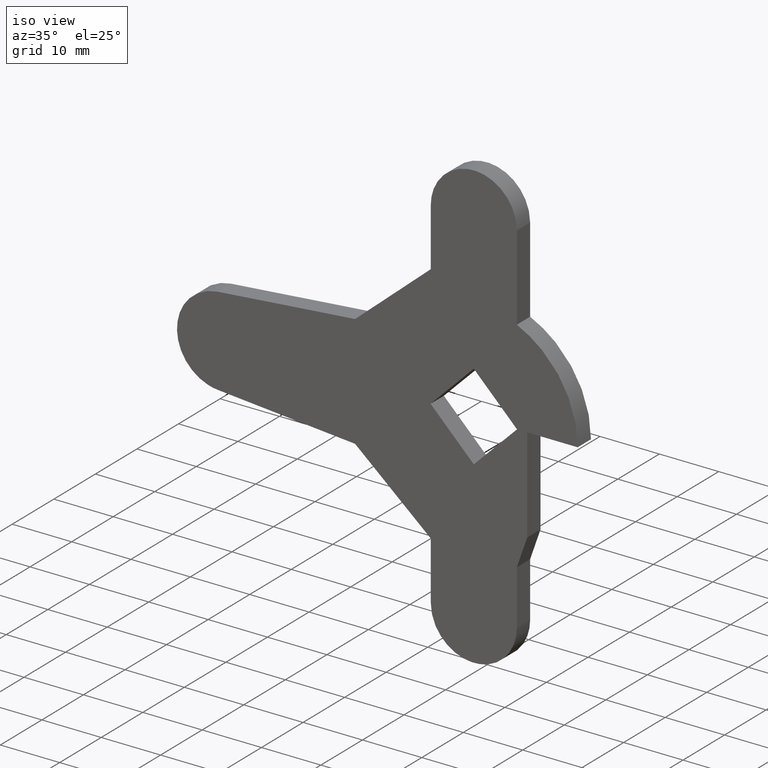
[diagram: clean part render]
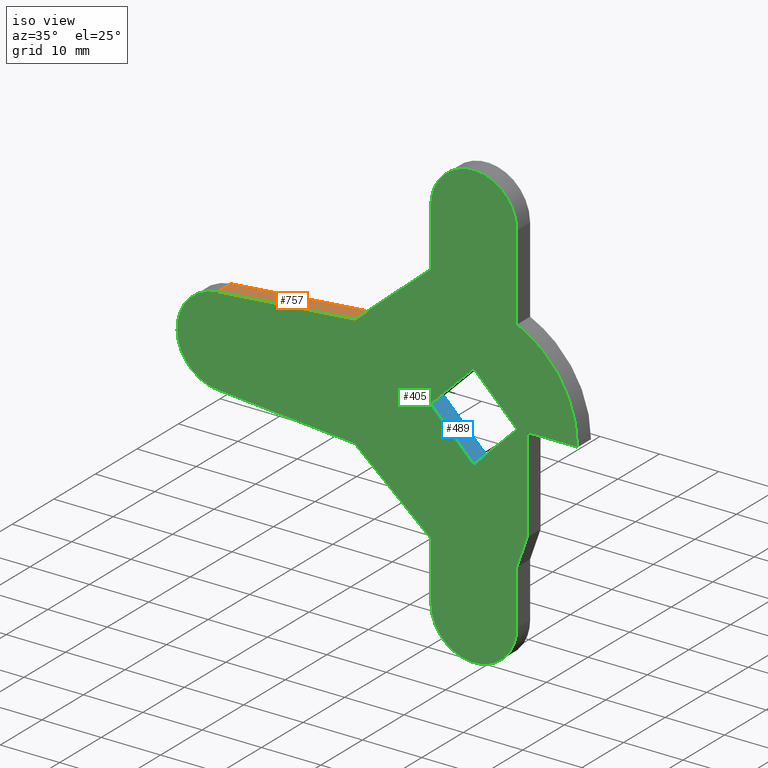
[diagram: same view with three faces highlighted in distinct colors, each labeled with its STEP entity id]
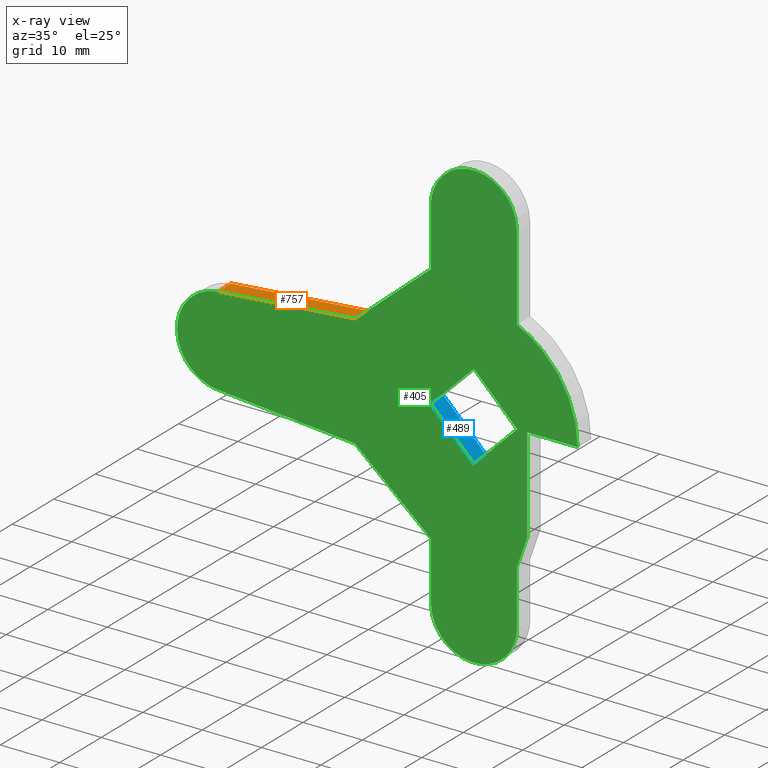
[diagram: x-ray of the same camera — body ghosted, the three highlighted faces saturated]
A machine part, iso view with three faces highlighted in distinct colors.
The next image is the same camera in x-ray (body ghosted, the three faces saturated) — at least one of them is partly hidden behind the body in this view.
Their STEP definitions:

[orange] entity #757 — the highlighted face is a freeform B-spline surface patch.
#49=CARTESIAN_POINT('',(-20.0,0.0,9.500000000000000));
#50=VERTEX_POINT('',#49);
#51=CARTESIAN_POINT('',(-43.154600000000002,0.0,7.471399999999999));
#52=VERTEX_POINT('',#51);
#53=CARTESIAN_POINT('',(-20.0,0.0,9.500000000000000));
#54=CARTESIAN_POINT('',(-43.154600000000002,0.0,7.471399999999999));
#55=QUASI_UNIFORM_CURVE('',1,(#53,#54),.UNSPECIFIED.,.F.,.U.);
#56=EDGE_CURVE('',#50,#52,#55,.T.);
#230=CARTESIAN_POINT('',(-20.0,-3.199999999999870,9.500000000000000));
#231=VERTEX_POINT('',#230);
#232=CARTESIAN_POINT('',(-43.154600000000002,-3.199999999999870,7.471399999999999));
#233=VERTEX_POINT('',#232);
#234=CARTESIAN_POINT('',(-20.0,-3.199999999999870,9.500000000000000));
#235=CARTESIAN_POINT('',(-43.154600000000002,-3.199999999999870,7.471399999999999));
#236=QUASI_UNIFORM_CURVE('',1,(#234,#235),.UNSPECIFIED.,.F.,.U.);
#237=EDGE_CURVE('',#231,#233,#236,.T.);
#412=CARTESIAN_POINT('',(-20.0,-3.199999999999870,9.500000000000000));
#413=CARTESIAN_POINT('',(-20.0,0.0,9.500000000000000));
#414=QUASI_UNIFORM_CURVE('',1,(#412,#413),.UNSPECIFIED.,.F.,.U.);
#415=EDGE_CURVE('',#231,#50,#414,.T.);
#738=CARTESIAN_POINT('',(-43.154600000000002,-3.199999999999870,7.471399999999999));
#739=CARTESIAN_POINT('',(-43.154600000000002,0.0,7.471399999999999));
#740=QUASI_UNIFORM_CURVE('',1,(#738,#739),.UNSPECIFIED.,.F.,.U.);
#741=EDGE_CURVE('',#233,#52,#740,.T.);
#746=CARTESIAN_POINT('',(-18.843427857602610,-3.359840053876264,9.601328558820596));
#747=CARTESIAN_POINT('',(-44.311171107306130,-3.359840053876264,7.370071531864879));
#748=CARTESIAN_POINT('',(-18.843427857602610,0.159840082486622,9.601328558820596));
#749=CARTESIAN_POINT('',(-44.311171107306130,0.159840082486622,7.370071531864879));
#750=B_SPLINE_SURFACE_WITH_KNOTS('',1,1,((#746,#748),(#747,#749)),.UNSPECIFIED.,.F.,.F.,.U.,(2,2),(2,2),(0.0,25.565297849881560),(0.0,3.519680136362887),.UNSPECIFIED.);
#751=ORIENTED_EDGE('',*,*,#56,.T.);
#752=ORIENTED_EDGE('',*,*,#741,.F.);
#753=ORIENTED_EDGE('',*,*,#237,.F.);
#754=ORIENTED_EDGE('',*,*,#415,.T.);
#755=EDGE_LOOP('',(#751,#752,#753,#754));
#756=FACE_OUTER_BOUND('',#755,.T.);
#757=ADVANCED_FACE('',(#756),#750,.F.);

[blue] entity #489 — the highlighted face is a freeform B-spline surface patch.
#194=CARTESIAN_POINT('',(-7.283200000000000,0.0,0.0));
#195=VERTEX_POINT('',#194);
#196=CARTESIAN_POINT('',(0.0,0.0,-7.283200000000000));
#197=VERTEX_POINT('',#196);
#198=CARTESIAN_POINT('',(-7.283200000000000,0.0,0.0));
#199=CARTESIAN_POINT('',(0.0,0.0,-7.283200000000000));
#200=QUASI_UNIFORM_CURVE('',1,(#198,#199),.UNSPECIFIED.,.F.,.U.);
#201=EDGE_CURVE('',#195,#197,#200,.T.);
#375=CARTESIAN_POINT('',(-7.283200000000000,-3.199999999999870,0.0));
#376=VERTEX_POINT('',#375);
#377=CARTESIAN_POINT('',(0.0,-3.199999999999870,-7.283200000000000));
#378=VERTEX_POINT('',#377);
#379=CARTESIAN_POINT('',(-7.283200000000000,-3.199999999999870,0.0));
#380=CARTESIAN_POINT('',(0.0,-3.199999999999870,-7.283200000000000));
#381=QUASI_UNIFORM_CURVE('',1,(#379,#380),.UNSPECIFIED.,.F.,.U.);
#382=EDGE_CURVE('',#376,#378,#381,.T.);
#432=CARTESIAN_POINT('',(0.0,-3.199999999999870,-7.283200000000000));
#433=CARTESIAN_POINT('',(0.0,0.0,-7.283200000000000));
#434=QUASI_UNIFORM_CURVE('',1,(#432,#433),.UNSPECIFIED.,.F.,.U.);
#435=EDGE_CURVE('',#378,#197,#434,.T.);
#470=CARTESIAN_POINT('',(-7.283200000000000,-3.199999999999870,0.0));
#471=CARTESIAN_POINT('',(-7.283200000000000,0.0,0.0));
#472=QUASI_UNIFORM_CURVE('',1,(#470,#471),.UNSPECIFIED.,.F.,.U.);
#473=EDGE_CURVE('',#376,#195,#472,.T.);
#478=CARTESIAN_POINT('',(-7.646995731493568,-3.359840053876264,0.363795731493569));
#479=CARTESIAN_POINT('',(0.363795471026039,-3.359840053876264,-7.646995471026040));
#480=CARTESIAN_POINT('',(-7.646995731493568,0.159840082486623,0.363795731493569));
#481=CARTESIAN_POINT('',(0.363795471026039,0.159840082486623,-7.646995471026040));
#482=B_SPLINE_SURFACE_WITH_KNOTS('',1,1,((#478,#480),(#479,#481)),.UNSPECIFIED.,.F.,.F.,.U.,(2,2),(2,2),(0.0,11.328969563942300),(0.0,3.519680136362887),.UNSPECIFIED.);
#483=ORIENTED_EDGE('',*,*,#201,.F.);
#484=ORIENTED_EDGE('',*,*,#473,.F.);
#485=ORIENTED_EDGE('',*,*,#382,.T.);
#486=ORIENTED_EDGE('',*,*,#435,.T.);
#487=EDGE_LOOP('',(#483,#484,#485,#486));
#488=FACE_OUTER_BOUND('',#487,.T.);
#489=ADVANCED_FACE('',(#488),#482,.T.);

[green] entity #405 — the highlighted face is a freeform B-spline surface patch.
#225=CARTESIAN_POINT('',(-53.371669325223742,-3.199999999999905,41.246249854635423));
#226=CARTESIAN_POINT('',(20.871628794602639,-3.199999999999905,41.246249854635423));
#227=CARTESIAN_POINT('',(-53.371669325223742,-3.199999999999905,-41.246251866292177));
#228=CARTESIAN_POINT('',(20.871628794602639,-3.199999999999905,-41.246251866292177));
#229=B_SPLINE_SURFACE_WITH_KNOTS('',1,1,((#225,#227),(#226,#228)),.UNSPECIFIED.,.F.,.F.,.U.,(2,2),(2,2),(0.0,74.243298119826378),(0.0,82.492501720927606),.UNSPECIFIED.);
#230=CARTESIAN_POINT('',(-20.0,-3.199999999999870,9.500000000000000));
#231=VERTEX_POINT('',#230);
#232=CARTESIAN_POINT('',(-43.154600000000002,-3.199999999999870,7.471399999999999));
#233=VERTEX_POINT('',#232);
#234=CARTESIAN_POINT('',(-20.0,-3.199999999999870,9.500000000000000));
#235=CARTESIAN_POINT('',(-43.154600000000002,-3.199999999999870,7.471399999999999));
#236=QUASI_UNIFORM_CURVE('',1,(#234,#235),.UNSPECIFIED.,.F.,.U.);
#237=EDGE_CURVE('',#231,#233,#236,.T.);
#238=ORIENTED_EDGE('',*,*,#237,.T.);
#239=CARTESIAN_POINT('',(-43.154599881245602,-3.199999999999870,-7.471400010404210));
#240=VERTEX_POINT('',#239);
#241=CARTESIAN_POINT('',(-43.154600000000002,-3.199999999999870,7.471399999999992));
#242=CARTESIAN_POINT('',(-50.000041792226938,-3.199999999999870,6.871663307519408));
#243=CARTESIAN_POINT('',(-50.000041737616002,-3.199999999999870,-0.000000059604654));
#244=CARTESIAN_POINT('',(-50.000041683005072,-3.199999999999870,-6.871663426728710));
#245=CARTESIAN_POINT('',(-43.154599881245602,-3.199999999999870,-7.471400010404211));
#253=(BOUNDED_CURVE()B_SPLINE_CURVE(2,(#241,#242,#243,#244,#245),.UNSPECIFIED.,.F.,.U.)B_SPLINE_CURVE_WITH_KNOTS((3,2,3),(0.0,0.500000000000000,1.0),.UNSPECIFIED.)CURVE()GEOMETRIC_REPRESENTATION_ITEM()RATIONAL_B_SPLINE_CURVE((1.0,0.737318376952824,1.0,0.737318376952824,1.0))REPRESENTATION_ITEM(''));
#254=EDGE_CURVE('',#233,#240,#253,.T.);
#255=ORIENTED_EDGE('',*,*,#254,.T.);
#256=CARTESIAN_POINT('',(-20.0,-3.199999999999870,-9.500000000000000));
#257=VERTEX_POINT('',#256);
#258=CARTESIAN_POINT('',(-43.154599881245602,-3.199999999999870,-7.471400010404210));
#259=CARTESIAN_POINT('',(-20.0,-3.199999999999870,-9.500000000000000));
#260=QUASI_UNIFORM_CURVE('',1,(#258,#259),.UNSPECIFIED.,.F.,.U.);
#261=EDGE_CURVE('',#240,#257,#260,.T.);
#262=ORIENTED_EDGE('',*,*,#261,.T.);
#263=CARTESIAN_POINT('',(-7.250000000000100,-3.199999999999870,-20.500000000000000));
#264=VERTEX_POINT('',#263);
#265=CARTESIAN_POINT('',(-20.0,-3.199999999999870,-9.500000000000000));
#266=CARTESIAN_POINT('',(-7.250000000000100,-3.199999999999870,-20.500000000000000));
#267=QUASI_UNIFORM_CURVE('',1,(#265,#266),.UNSPECIFIED.,.F.,.U.);
#268=EDGE_CURVE('',#257,#264,#267,.T.);
#269=ORIENTED_EDGE('',*,*,#268,.T.);
#270=CARTESIAN_POINT('',(-7.250000000000100,-3.199999999999870,-30.250000000000000));
#271=VERTEX_POINT('',#270);
#272=CARTESIAN_POINT('',(-7.250000000000100,-3.199999999999870,-20.500000000000000));
#273=CARTESIAN_POINT('',(-7.250000000000100,-3.199999999999870,-30.250000000000000));
#274=QUASI_UNIFORM_CURVE('',1,(#272,#273),.UNSPECIFIED.,.F.,.U.);
#275=EDGE_CURVE('',#264,#271,#274,.T.);
#276=ORIENTED_EDGE('',*,*,#275,.T.);
#277=CARTESIAN_POINT('',(7.250000000000000,-3.199999999999870,-30.250000000000000));
#278=VERTEX_POINT('',#277);
#279=CARTESIAN_POINT('',(-7.250000000000000,-3.199999999999870,-30.250000000000000));
#280=CARTESIAN_POINT('',(-7.250000000000000,-3.199999999999870,-37.499999999999993));
#281=CARTESIAN_POINT('',(0.0,-3.199999999999870,-37.500000000000000));
#282=CARTESIAN_POINT('',(7.250000000000000,-3.199999999999870,-37.499999999999993));
#283=CARTESIAN_POINT('',(7.250000000000000,-3.199999999999870,-30.250000000000000));
#291=(BOUNDED_CURVE()B_SPLINE_CURVE(2,(#279,#280,#281,#282,#283),.UNSPECIFIED.,.F.,.U.)B_SPLINE_CURVE_WITH_KNOTS((3,2,3),(0.0,0.500000000000000,1.0),.UNSPECIFIED.)CURVE()GEOMETRIC_REPRESENTATION_ITEM()RATIONAL_B_SPLINE_CURVE((1.0,0.707106781186548,1.0,0.707106781186548,1.0))REPRESENTATION_ITEM(''));
#292=EDGE_CURVE('',#271,#278,#291,.T.);
#293=ORIENTED_EDGE('',*,*,#292,.T.);
#294=CARTESIAN_POINT('',(7.250000000000000,-3.199999999999870,-21.0));
#295=VERTEX_POINT('',#294);
#296=CARTESIAN_POINT('',(7.250000000000000,-3.199999999999870,-30.250000000000000));
#297=CARTESIAN_POINT('',(7.250000000000000,-3.199999999999870,-21.0));
#298=QUASI_UNIFORM_CURVE('',1,(#296,#297),.UNSPECIFIED.,.F.,.U.);
#299=EDGE_CURVE('',#278,#295,#298,.T.);
#300=ORIENTED_EDGE('',*,*,#299,.T.);
#301=CARTESIAN_POINT('',(8.999999999999799,-3.199999999999870,-16.0));
#302=VERTEX_POINT('',#301);
#303=CARTESIAN_POINT('',(7.250000000000000,-3.199999999999870,-21.0));
#304=CARTESIAN_POINT('',(8.999999999999799,-3.199999999999870,-16.0));
#305=QUASI_UNIFORM_CURVE('',1,(#303,#304),.UNSPECIFIED.,.F.,.U.);
#306=EDGE_CURVE('',#295,#302,#305,.T.);
#307=ORIENTED_EDGE('',*,*,#306,.T.);
#308=CARTESIAN_POINT('',(8.999999999999799,-3.199999999999870,0.0));
#309=VERTEX_POINT('',#308);
#310=CARTESIAN_POINT('',(8.999999999999799,-3.199999999999870,-16.0));
#311=CARTESIAN_POINT('',(8.999999999999799,-3.199999999999870,0.0));
#312=QUASI_UNIFORM_CURVE('',1,(#310,#311),.UNSPECIFIED.,.F.,.U.);
#313=EDGE_CURVE('',#302,#309,#312,.T.);
#314=ORIENTED_EDGE('',*,*,#313,.T.);
#315=CARTESIAN_POINT('',(17.500000000000000,-3.199999999999870,0.0));
#316=VERTEX_POINT('',#315);
#317=CARTESIAN_POINT('',(8.999999999999799,-3.199999999999870,0.0));
#318=CARTESIAN_POINT('',(17.500000000000000,-3.199999999999870,0.0));
#319=QUASI_UNIFORM_CURVE('',1,(#317,#318),.UNSPECIFIED.,.F.,.U.);
#320=EDGE_CURVE('',#309,#316,#319,.T.);
#321=ORIENTED_EDGE('',*,*,#320,.T.);
#322=CARTESIAN_POINT('',(7.250000000000000,-3.199999999999870,15.927570436196500));
#323=VERTEX_POINT('',#322);
#324=CARTESIAN_POINT('',(17.500000000000000,-3.199999999999870,0.0));
#325=CARTESIAN_POINT('',(17.500000000000004,-3.199999999999871,11.261918490239934));
#326=CARTESIAN_POINT('',(7.250000000000001,-3.199999999999870,15.927570436196479));
#334=(BOUNDED_CURVE()B_SPLINE_CURVE(2,(#324,#325,#326),.UNSPECIFIED.,.F.,.U.)CURVE()GEOMETRIC_REPRESENTATION_ITEM()QUASI_UNIFORM_CURVE()RATIONAL_B_SPLINE_CURVE((1.0,0.840917865872082,1.0))REPRESENTATION_ITEM(''));
#335=EDGE_CURVE('',#316,#323,#334,.T.);
#336=ORIENTED_EDGE('',*,*,#335,.T.);
#337=CARTESIAN_POINT('',(7.250000000000000,-3.199999999999870,30.250000000000000));
#338=VERTEX_POINT('',#337);
#339=CARTESIAN_POINT('',(7.250000000000000,-3.199999999999870,15.927570436196500));
#340=CARTESIAN_POINT('',(7.250000000000000,-3.199999999999870,30.250000000000000));
#341=QUASI_UNIFORM_CURVE('',1,(#339,#340),.UNSPECIFIED.,.F.,.U.);
#342=EDGE_CURVE('',#323,#338,#341,.T.);
#343=ORIENTED_EDGE('',*,*,#342,.T.);
#344=CARTESIAN_POINT('',(-7.250000000000000,-3.199999999999870,30.250000000000000));
#345=VERTEX_POINT('',#344);
#346=CARTESIAN_POINT('',(7.250000000000000,-3.199999999999870,30.250000000000000));
#347=CARTESIAN_POINT('',(7.250000000000000,-3.199999999999870,37.499999999999993));
#348=CARTESIAN_POINT('',(0.0,-3.199999999999870,37.500000000000000));
#349=CARTESIAN_POINT('',(-7.250000000000000,-3.199999999999870,37.499999999999993));
#350=CARTESIAN_POINT('',(-7.250000000000000,-3.199999999999870,30.250000000000000));
#358=(BOUNDED_CURVE()B_SPLINE_CURVE(2,(#346,#347,#348,#349,#350),.UNSPECIFIED.,.F.,.U.)B_SPLINE_CURVE_WITH_KNOTS((3,2,3),(0.0,0.500000000000000,1.0),.UNSPECIFIED.)CURVE()GEOMETRIC_REPRESENTATION_ITEM()RATIONAL_B_SPLINE_CURVE((1.0,0.707106781186548,1.0,0.707106781186548,1.0))REPRESENTATION_ITEM(''));
#359=EDGE_CURVE('',#338,#345,#358,.T.);
#360=ORIENTED_EDGE('',*,*,#359,.T.);
#361=CARTESIAN_POINT('',(-7.250000000000100,-3.199999999999870,20.500000000000000));
#362=VERTEX_POINT('',#361);
#363=CARTESIAN_POINT('',(-7.250000000000000,-3.199999999999870,30.250000000000000));
#364=CARTESIAN_POINT('',(-7.250000000000100,-3.199999999999870,20.500000000000000));
#365=QUASI_UNIFORM_CURVE('',1,(#363,#364),.UNSPECIFIED.,.F.,.U.);
#366=EDGE_CURVE('',#345,#362,#365,.T.);
#367=ORIENTED_EDGE('',*,*,#366,.T.);
#368=CARTESIAN_POINT('',(-7.250000000000100,-3.199999999999870,20.500000000000000));
#369=CARTESIAN_POINT('',(-20.0,-3.199999999999870,9.500000000000000));
#370=QUASI_UNIFORM_CURVE('',1,(#368,#369),.UNSPECIFIED.,.F.,.U.);
#371=EDGE_CURVE('',#362,#231,#370,.T.);
#372=ORIENTED_EDGE('',*,*,#371,.T.);
#373=EDGE_LOOP('',(#238,#255,#262,#269,#276,#293,#300,#307,#314,#321,#336,#343,#360,#367,#372));
#374=FACE_OUTER_BOUND('',#373,.T.);
#375=CARTESIAN_POINT('',(-7.283200000000000,-3.199999999999870,0.0));
#376=VERTEX_POINT('',#375);
#377=CARTESIAN_POINT('',(0.0,-3.199999999999870,-7.283200000000000));
#378=VERTEX_POINT('',#377);
#379=CARTESIAN_POINT('',(-7.283200000000000,-3.199999999999870,0.0));
#380=CARTESIAN_POINT('',(0.0,-3.199999999999870,-7.283200000000000));
#381=QUASI_UNIFORM_CURVE('',1,(#379,#380),.UNSPECIFIED.,.F.,.U.);
#382=EDGE_CURVE('',#376,#378,#381,.T.);
#383=ORIENTED_EDGE('',*,*,#382,.F.);
#384=CARTESIAN_POINT('',(0.0,-3.199999999999870,7.283200000000000));
#385=VERTEX_POINT('',#384);
#386=CARTESIAN_POINT('',(0.0,-3.199999999999870,7.283200000000000));
#387=CARTESIAN_POINT('',(-7.283200000000000,-3.199999999999870,0.0));
#388=QUASI_UNIFORM_CURVE('',1,(#386,#387),.UNSPECIFIED.,.F.,.U.);
#389=EDGE_CURVE('',#385,#376,#388,.T.);
#390=ORIENTED_EDGE('',*,*,#389,.F.);
#391=CARTESIAN_POINT('',(7.283199999999890,-3.199999999999870,0.0));
#392=VERTEX_POINT('',#391);
#393=CARTESIAN_POINT('',(7.283199999999890,-3.199999999999870,0.0));
#394=CARTESIAN_POINT('',(0.0,-3.199999999999870,7.283200000000000));
#395=QUASI_UNIFORM_CURVE('',1,(#393,#394),.UNSPECIFIED.,.F.,.U.);
#396=EDGE_CURVE('',#392,#385,#395,.T.);
#397=ORIENTED_EDGE('',*,*,#396,.F.);
#398=CARTESIAN_POINT('',(0.0,-3.199999999999870,-7.283200000000000));
#399=CARTESIAN_POINT('',(7.283199999999890,-3.199999999999870,0.0));
#400=QUASI_UNIFORM_CURVE('',1,(#398,#399),.UNSPECIFIED.,.F.,.U.);
#401=EDGE_CURVE('',#378,#392,#400,.T.);
#402=ORIENTED_EDGE('',*,*,#401,.F.);
#403=EDGE_LOOP('',(#383,#390,#397,#402));
#404=FACE_BOUND('',#403,.T.);
#405=ADVANCED_FACE('',(#374,#404),#229,.F.);